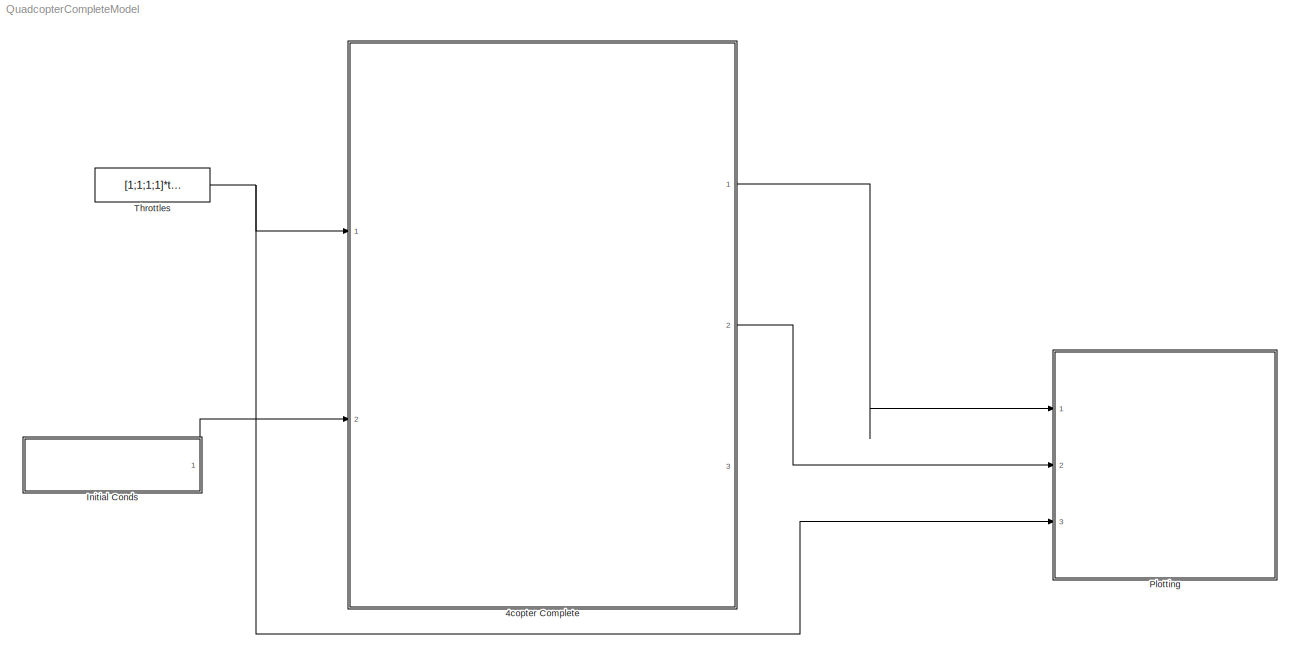
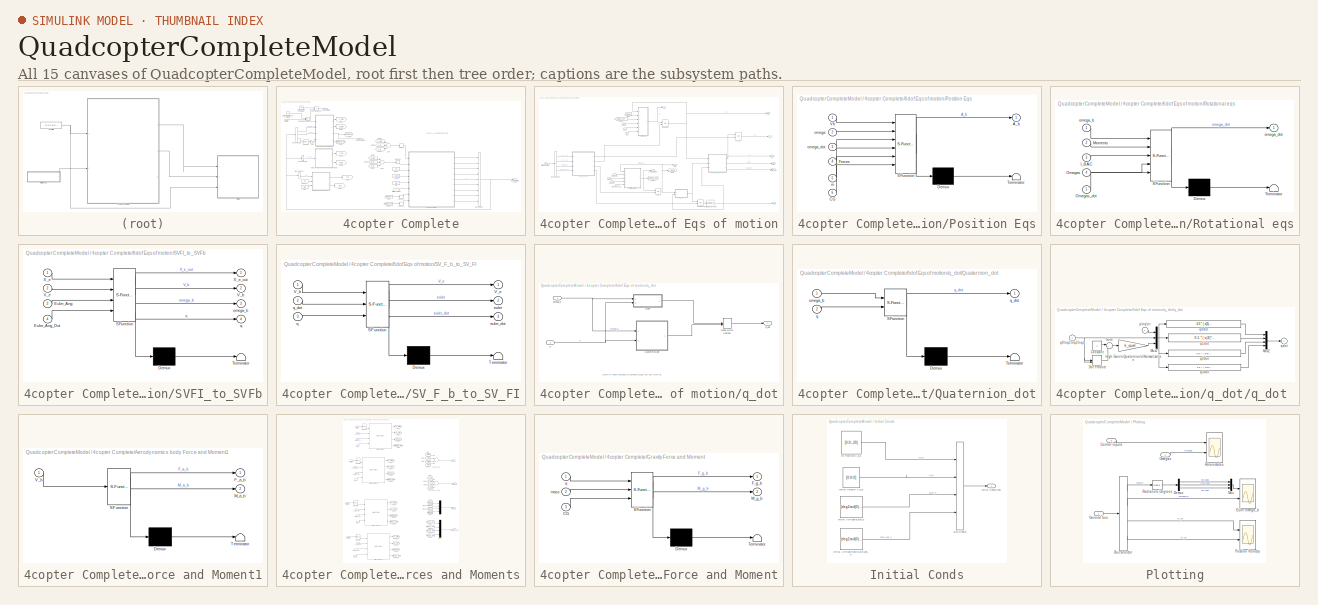
[diagram: thumbnail index - all 15 canvases of the model, root first then tree order]
MODEL QuadcopterCompleteModel
KIND model
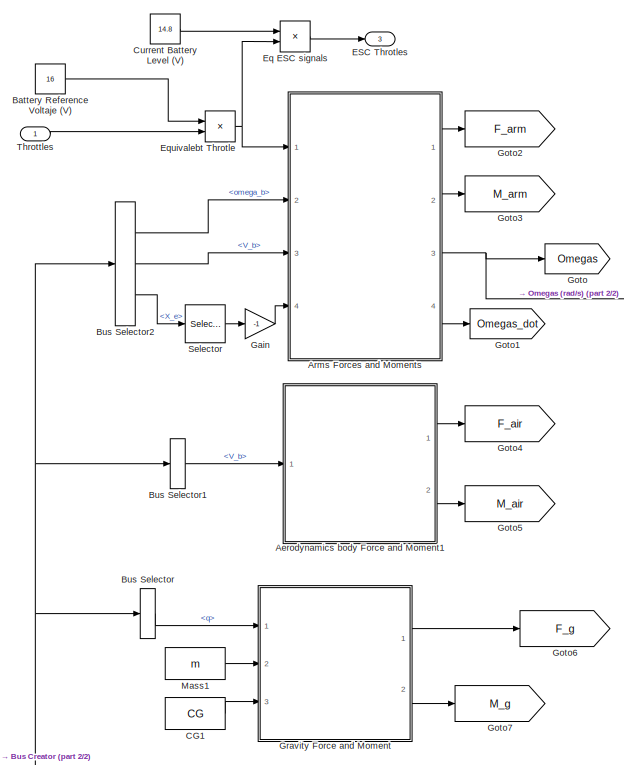
[diagram: 4copter Complete - part 1/2, left side, full height]
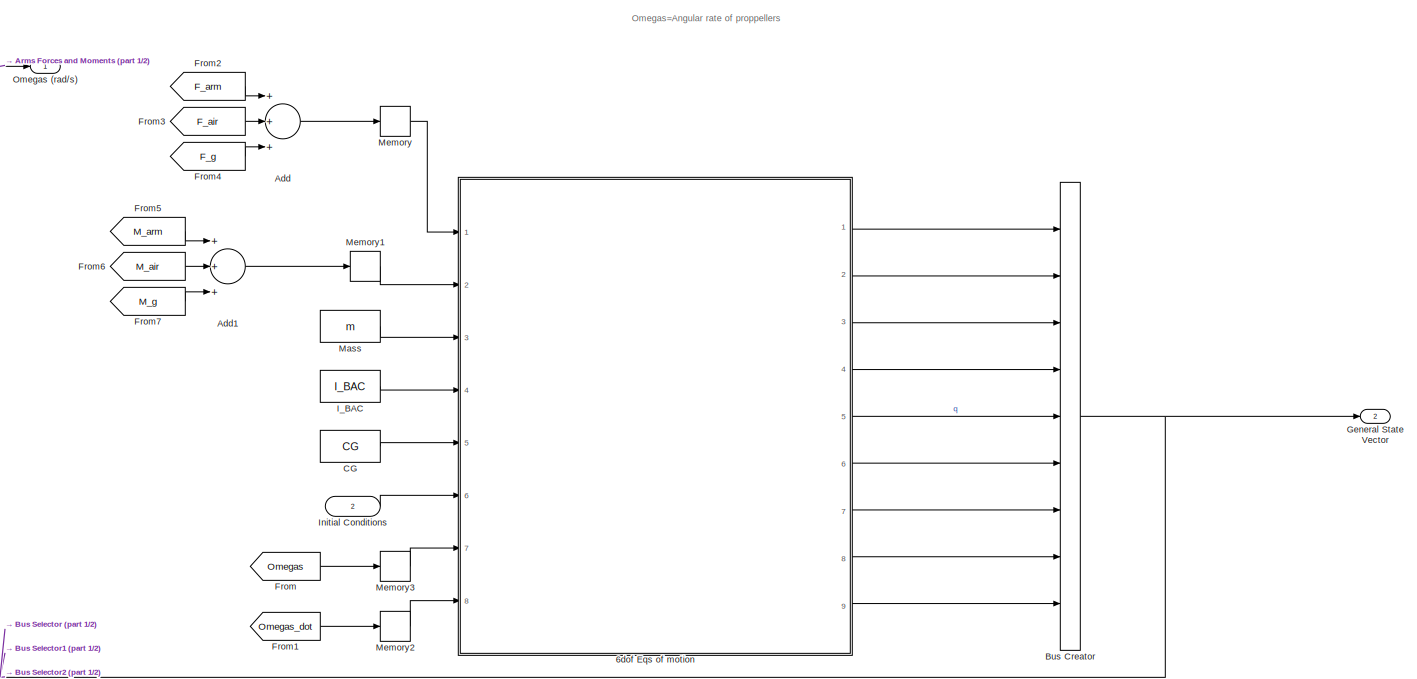
[diagram: 4copter Complete - part 2/2, central region]
BLOCK [SubSystem] 4copter Complete
  Ports = [2, 3]
  RequestExecContextInheritance = off
  SID = 284
  TreatAsAtomicUnit = on
BLOCK [SubSystem] 4copter Complete/6dof Eqs of motion
  Ports = [8, 9]
  RequestExecContextInheritance = off
  SID = 339
  TreatAsAtomicUnit = on
BLOCK [Outport] 4copter Complete/6dof Eqs of motion/Ab
  IconDisplay = Port number
  Port = 7
  SID = 369
BLOCK [BusSelector] 4copter Complete/6dof Eqs of motion/Bus Selector
  OutputSignals = X_e_0,V_e_0,Euler_0,Euler_dot_0
  Ports = [1, 4]
  SID = 372
BLOCK [Inport] 4copter Complete/6dof Eqs of motion/CG
  IconDisplay = Port number
  Port = 5
  SID = 371
BLOCK [Inport] 4copter Complete/6dof Eqs of motion/Forces
  IconDisplay = Port number
  SID = 342
BLOCK [From] 4copter Complete/6dof Eqs of motion/From
  GotoTag = omega
  SID = 349
BLOCK [From] 4copter Complete/6dof Eqs of motion/From1
  GotoTag = omega_dot
  SID = 350
BLOCK [Goto] 4copter Complete/6dof Eqs of motion/Goto
  GotoTag = omega
  SID = 351
BLOCK [Goto] 4copter Complete/6dof Eqs of motion/Goto1
  GotoTag = omega_dot
  SID = 352
BLOCK [Inport] 4copter Complete/6dof Eqs of motion/I_BAC
  IconDisplay = Port number
  Port = 4
  SID = 347
BLOCK [Inport] 4copter Complete/6dof Eqs of motion/Initial Conditions
  IconDisplay = Port number
  Port = 6
  SID = 373
BLOCK [Inport] 4copter Complete/6dof Eqs of motion/Moments
  IconDisplay = Port number
  Port = 2
  SID = 343
BLOCK [Reference] 4copter Complete/6dof Eqs of motion/Normalize 4D vector  REF=MCopter/Normalize 4D vector
  Ports = [1, 1]
  SID = 1178
  SourceBlock = MCopter/Normalize 4D vector
  SourceType = SubSystem
BLOCK [Inport] 4copter Complete/6dof Eqs of motion/Omegas
  IconDisplay = Port number
  Port = 7
  SID = 391
BLOCK [Inport] 4copter Complete/6dof Eqs of motion/Omegas_dot
  IconDisplay = Port number
  Port = 8
  SID = 392
BLOCK [SubSystem] 4copter Complete/6dof Eqs of motion/Position Eqs
  ErrorFcn = Stateflow.Translate.translate
  PermitHierarchicalResolution = ExplicitOnly
  Ports = [6, 1]
  RequestExecContextInheritance = off
  SFBlockType = MATLAB Function
  SID = 353
  TreatAsAtomicUnit = on
BLOCK [Demux] 4copter Complete/6dof Eqs of motion/Position Eqs/ Demux 
  Outputs = 1
  Ports = [1, 1]
  SID = 353::32
BLOCK [S-Function] 4copter Complete/6dof Eqs of motion/Position Eqs/ SFunction 
  EnableBusSupport = on
  FunctionName = sf_sfun
  PortCounts = [6 2]
  Ports = [6, 2]
  SID = 353::31
  Tag = Stateflow S-Function QuadcopterCompleteModel 1
BLOCK [Terminator] 4copter Complete/6dof Eqs of motion/Position Eqs/ Terminator 
  SID = 353::33
BLOCK [Outport] 4copter Complete/6dof Eqs of motion/Position Eqs/A_b
  IconDisplay = Port number
  SID = 353::23
BLOCK [Inport] 4copter Complete/6dof Eqs of motion/Position Eqs/CG
  IconDisplay = Port number
  Port = 6
  SID = 353::30
BLOCK [Inport] 4copter Complete/6dof Eqs of motion/Position Eqs/Forces
  IconDisplay = Port number
  Port = 4
  SID = 353::25
BLOCK [Inport] 4copter Complete/6dof Eqs of motion/Position Eqs/Vb
  IconDisplay = Port number
  SID = 353::1
BLOCK [Inport] 4copter Complete/6dof Eqs of motion/Position Eqs/m
  IconDisplay = Port number
  Port = 5
  SID = 353::26
BLOCK [Inport] 4copter Complete/6dof Eqs of motion/Position Eqs/omega
  IconDisplay = Port number
  Port = 2
  SID = 353::28
BLOCK [Inport] 4copter Complete/6dof Eqs of motion/Position Eqs/omega_dot
  IconDisplay = Port number
  Port = 3
  SID = 353::29
BLOCK [SubSystem] 4copter Complete/6dof Eqs of motion/Rotational eqs
  ErrorFcn = Stateflow.Translate.translate
  PermitHierarchicalResolution = ExplicitOnly
  Ports = [5, 1]
  RequestExecContextInheritance = off
  SFBlockType = MATLAB Function
  SID = 354
  TreatAsAtomicUnit = on
BLOCK [Demux] 4copter Complete/6dof Eqs of motion/Rotational eqs/ Demux 
  Outputs = 1
  Ports = [1, 1]
  SID = 354::41
BLOCK [S-Function] 4copter Complete/6dof Eqs of motion/Rotational eqs/ SFunction 
  EnableBusSupport = on
  FunctionName = sf_sfun
  Parameters = M_eq,R,Rotation_sign
  PortCounts = [5 2]
  Ports = [5, 2]
  SID = 354::40
  Tag = Stateflow S-Function QuadcopterCompleteModel 2
BLOCK [Terminator] 4copter Complete/6dof Eqs of motion/Rotational eqs/ Terminator 
  SID = 354::42
BLOCK [Inport] 4copter Complete/6dof Eqs of motion/Rotational eqs/I_BAC
  IconDisplay = Port number
  Port = 3
  SID = 354::33
BLOCK [Inport] 4copter Complete/6dof Eqs of motion/Rotational eqs/Moments
  IconDisplay = Port number
  Port = 2
  SID = 354::35
BLOCK [Inport] 4copter Complete/6dof Eqs of motion/Rotational eqs/Omegas
  IconDisplay = Port number
  Port = 4
  SID = 354::38
BLOCK [Inport] 4copter Complete/6dof Eqs of motion/Rotational eqs/Omegas_dot
  IconDisplay = Port number
  Port = 5
  SID = 354::39
BLOCK [Inport] 4copter Complete/6dof Eqs of motion/Rotational eqs/omega_b
  IconDisplay = Port number
  SID = 354::37
BLOCK [Outport] 4copter Complete/6dof Eqs of motion/Rotational eqs/omega_dot
  IconDisplay = Port number
  SID = 354::31
BLOCK [SubSystem] 4copter Complete/6dof Eqs of motion/SVFI_to_SVFb
  ErrorFcn = Stateflow.Translate.translate
  PermitHierarchicalResolution = ExplicitOnly
  Ports = [4, 4]
  RequestExecContextInheritance = off
  SFBlockType = MATLAB Function
  SID = 303
  TreatAsAtomicUnit = on
BLOCK [Demux] 4copter Complete/6dof Eqs of motion/SVFI_to_SVFb/ Demux 
  Outputs = 1
  Ports = [1, 1]
  SID = 303::36
BLOCK [S-Function] 4copter Complete/6dof Eqs of motion/SVFI_to_SVFb/ SFunction 
  EnableBusSupport = on
  FunctionName = sf_sfun
  PortCounts = [4 5]
  Ports = [4, 5]
  SID = 303::35
  Tag = Stateflow S-Function QuadcopterCompleteModel 11
BLOCK [Terminator] 4copter Complete/6dof Eqs of motion/SVFI_to_SVFb/ Terminator 
  SID = 303::37
BLOCK [Inport] 4copter Complete/6dof Eqs of motion/SVFI_to_SVFb/Euler_Ang
  IconDisplay = Port number
  Port = 3
  SID = 303::29
BLOCK [Inport] 4copter Complete/6dof Eqs of motion/SVFI_to_SVFb/Euler_Ang_Dot
  IconDisplay = Port number
  Port = 4
  SID = 303::30
BLOCK [Outport] 4copter Complete/6dof Eqs of motion/SVFI_to_SVFb/V_b
  IconDisplay = Port number
  Port = 2
  SID = 303::33
BLOCK [Inport] 4copter Complete/6dof Eqs of motion/SVFI_to_SVFb/V_e
  IconDisplay = Port number
  Port = 2
  SID = 303::32
BLOCK [Inport] 4copter Complete/6dof Eqs of motion/SVFI_to_SVFb/X_e
  IconDisplay = Port number
  SID = 303::1
BLOCK [Outport] 4copter Complete/6dof Eqs of motion/SVFI_to_SVFb/X_e_out
  IconDisplay = Port number
  SID = 303::28
BLOCK [Outport] 4copter Complete/6dof Eqs of motion/SVFI_to_SVFb/omega_b
  IconDisplay = Port number
  Port = 3
  SID = 303::34
BLOCK [Outport] 4copter Complete/6dof Eqs of motion/SVFI_to_SVFb/q
  IconDisplay = Port number
  Port = 4
  SID = 303::31
BLOCK [SubSystem] 4copter Complete/6dof Eqs of motion/SV_F_b_to_SV_FI
  ErrorFcn = Stateflow.Translate.translate
  PermitHierarchicalResolution = ExplicitOnly
  Ports = [3, 3]
  RequestExecContextInheritance = off
  SFBlockType = MATLAB Function
  SID = 304
  TreatAsAtomicUnit = on
BLOCK [Demux] 4copter Complete/6dof Eqs of motion/SV_F_b_to_SV_FI/ Demux 
  Outputs = 1
  Ports = [1, 1]
  SID = 304::39
BLOCK [S-Function] 4copter Complete/6dof Eqs of motion/SV_F_b_to_SV_FI/ SFunction 
  EnableBusSupport = on
  FunctionName = sf_sfun
  PortCounts = [3 4]
  Ports = [3, 4]
  SID = 304::38
  Tag = Stateflow S-Function QuadcopterCompleteModel 12
BLOCK [Terminator] 4copter Complete/6dof Eqs of motion/SV_F_b_to_SV_FI/ Terminator 
  SID = 304::40
BLOCK [Inport] 4copter Complete/6dof Eqs of motion/SV_F_b_to_SV_FI/V_b
  IconDisplay = Port number
  SID = 304::31
BLOCK [Outport] 4copter Complete/6dof Eqs of motion/SV_F_b_to_SV_FI/V_e
  IconDisplay = Port number
  SID = 304::34
BLOCK [Outport] 4copter Complete/6dof Eqs of motion/SV_F_b_to_SV_FI/euler
  IconDisplay = Port number
  Port = 2
  SID = 304::35
BLOCK [Outport] 4copter Complete/6dof Eqs of motion/SV_F_b_to_SV_FI/euler_dot
  IconDisplay = Port number
  Port = 3
  SID = 304::36
BLOCK [Inport] 4copter Complete/6dof Eqs of motion/SV_F_b_to_SV_FI/q
  IconDisplay = Port number
  Port = 3
  SID = 304::33
BLOCK [Inport] 4copter Complete/6dof Eqs of motion/SV_F_b_to_SV_FI/q_dot
  IconDisplay = Port number
  Port = 2
  SID = 304::37
BLOCK [Outport] 4copter Complete/6dof Eqs of motion/Vb
  IconDisplay = Port number
  Port = 3
  SID = 366
BLOCK [Outport] 4copter Complete/6dof Eqs of motion/Ve
  IconDisplay = Port number
  Port = 2
  SID = 362
BLOCK [Outport] 4copter Complete/6dof Eqs of motion/Xe
  IconDisplay = Port number
  SID = 363
BLOCK [Outport] 4copter Complete/6dof Eqs of motion/euler
  IconDisplay = Port number
  Port = 8
  SID = 364
BLOCK [Outport] 4copter Complete/6dof Eqs of motion/euler_dot
  IconDisplay = Port number
  Port = 9
  SID = 389
BLOCK [Inport] 4copter Complete/6dof Eqs of motion/mass
  IconDisplay = Port number
  Port = 3
  SID = 345
BLOCK [Outport] 4copter Complete/6dof Eqs of motion/p,q,r
  IconDisplay = Port number
  Port = 4
  SID = 367
BLOCK [Integrator] 4copter Complete/6dof Eqs of motion/p,q,r 
  InitialCondition = [P_0,Q_0,R_0]
  InitialConditionSource = external
  Ports = [2, 1]
  SID = 358
BLOCK [Outport] 4copter Complete/6dof Eqs of motion/pdot,qdot,rdot
  IconDisplay = Port number
  Port = 6
  SID = 368
BLOCK [Outport] 4copter Complete/6dof Eqs of motion/q
  IconDisplay = Port number
  Port = 5
  SID = 365
BLOCK [SubSystem] 4copter Complete/6dof Eqs of motion/q_dot
  Ports = [2, 1]
  RequestExecContextInheritance = off
  SID = 1017
  TreatAsAtomicUnit = on
BLOCK [SubSystem] 4copter Complete/6dof Eqs of motion/q_dot/Quaternion_dot
  ErrorFcn = Stateflow.Translate.translate
  PermitHierarchicalResolution = ExplicitOnly
  Ports = [2, 1]
  RequestExecContextInheritance = off
  SFBlockType = MATLAB Function
  SID = 1004
  TreatAsAtomicUnit = on
  VariantControl = Variant
BLOCK [Demux] 4copter Complete/6dof Eqs of motion/q_dot/Quaternion_dot/ Demux 
  Outputs = 1
  Ports = [1, 1]
  SID = 1004::25
BLOCK [S-Function] 4copter Complete/6dof Eqs of motion/q_dot/Quaternion_dot/ SFunction 
  EnableBusSupport = on
  FunctionName = sf_sfun
  PortCounts = [2 2]
  Ports = [2, 2]
  SID = 1004::24
  Tag = Stateflow S-Function QuadcopterCompleteModel 3
BLOCK [Terminator] 4copter Complete/6dof Eqs of motion/q_dot/Quaternion_dot/ Terminator 
  SID = 1004::26
BLOCK [Inport] 4copter Complete/6dof Eqs of motion/q_dot/Quaternion_dot/omega_b
  IconDisplay = Port number
  SID = 1004::1
BLOCK [Inport] 4copter Complete/6dof Eqs of motion/q_dot/Quaternion_dot/q
  IconDisplay = Port number
  Port = 2
  SID = 1004::23
BLOCK [Outport] 4copter Complete/6dof Eqs of motion/q_dot/Quaternion_dot/q_dot
  IconDisplay = Port number
  SID = 1004::5
BLOCK [ManualSwitch] 4copter Complete/6dof Eqs of motion/q_dot/chose which method
  CurrentSetting = 0
  SID = 1025
BLOCK [Inport] 4copter Complete/6dof Eqs of motion/q_dot/omega_b
  IconDisplay = Port number
  SID = 1018
BLOCK [Inport] 4copter Complete/6dof Eqs of motion/q_dot/q
  IconDisplay = Port number
  Port = 2
  SID = 1020
BLOCK [Outport] 4copter Complete/6dof Eqs of motion/q_dot/q_dot
  IconDisplay = Port number
  SID = 1019
BLOCK [SubSystem] 4copter Complete/6dof Eqs of motion/q_dot/q_dot 
  Ports = [2, 1]
  RequestExecContextInheritance = off
  SID = 1179
  TreatAsAtomicUnit = on
BLOCK [Constant] 4copter Complete/6dof Eqs of motion/q_dot/q_dot /Constant
  SID = 1184
BLOCK [DotProduct] 4copter Complete/6dof Eqs of motion/q_dot/q_dot /Dot Product
  InputSameDT = off
  OutDataTypeStr = Inherit: Inherit via internal rule
  SID = 1185
BLOCK [Gain] 4copter Complete/6dof Eqs of motion/q_dot/q_dot /High Gain\nQuaternion\nNormalization
  Gain = k_quat
  SID = 1186
BLOCK [Mux] 4copter Complete/6dof Eqs of motion/q_dot/q_dot /Mux1
  DisplayOption = bar
  Inputs = [3 4 1]
  Ports = [3, 1]
  SID = 1187
BLOCK [Mux] 4copter Complete/6dof Eqs of motion/q_dot/q_dot /Mux2
  DisplayOption = bar
  Ports = [4, 1]
  SID = 1188
BLOCK [Sum] 4copter Complete/6dof Eqs of motion/q_dot/q_dot /Sum
  IconShape = round
  Inputs = |+-
  Ports = [2, 1]
  SID = 1189
BLOCK [Inport] 4copter Complete/6dof Eqs of motion/q_dot/q_dot /p\nq\nr
  IconDisplay = Port number
  SID = 1182
BLOCK [Inport] 4copter Complete/6dof Eqs of motion/q_dot/q_dot /q0\nq1\nq2\nq3
  IconDisplay = Port number
  Port = 2
  SID = 1183
BLOCK [Fcn] 4copter Complete/6dof Eqs of motion/q_dot/q_dot /q0dot
  Expr = -0.5 * ( u[5]*u[1]+u[6]*u[2]+u[7]*u[3] ) + u[8]*u[4]
  SID = 1190
BLOCK [Fcn] 4copter Complete/6dof Eqs of motion/q_dot/q_dot /q1dot
  Expr = 0.5 * ( u[4]*u[1]+u[6]*u[3]-u[7]*u[2] ) + u[8]*u[5]
  SID = 1191
BLOCK [Fcn] 4copter Complete/6dof Eqs of motion/q_dot/q_dot /q2dot
  Expr = 0.5 * ( u[4]*u[2]+u[7]*u[1]-u[5]*u[3] ) + u[8]*u[6]
  SID = 1192
BLOCK [Fcn] 4copter Complete/6dof Eqs of motion/q_dot/q_dot /q3dot
  Expr = 0.5 * ( u[4]*u[3]+u[5]*u[2]-u[6]*u[1] ) + u[8]*u[7]
  SID = 1193
BLOCK [Outport] 4copter Complete/6dof Eqs of motion/q_dot/q_dot /qdot
  IconDisplay = Port number
  InitialOutput = 0
  SID = 1194
BLOCK [Integrator] 4copter Complete/6dof Eqs of motion/quaternion
  InitialCondition = [P_0,Q_0,R_0]
  InitialConditionSource = external
  Ports = [2, 1]
  SID = 386
BLOCK [Integrator] 4copter Complete/6dof Eqs of motion/ub,vb,wb
  InitialCondition = [U_0,V_0,W_0]
  InitialConditionSource = external
  Ports = [2, 1]
  SID = 360
BLOCK [Integrator] 4copter Complete/6dof Eqs of motion/xe,ye,ze
  InitialCondition = [NORTH_0,EAST_0,-DOWN_0]
  InitialConditionSource = external
  Ports = [2, 1]
  SID = 361
BLOCK [Sum] 4copter Complete/Add
  InputSameDT = off
  Inputs = +++
  OutDataTypeStr = Inherit: Inherit via internal rule
  Ports = [3, 1]
  SID = 649
  SaturateOnIntegerOverflow = off
BLOCK [Sum] 4copter Complete/Add1
  InputSameDT = off
  Inputs = +++
  OutDataTypeStr = Inherit: Inherit via internal rule
  Ports = [3, 1]
  SID = 663
  SaturateOnIntegerOverflow = off
BLOCK [SubSystem] 4copter Complete/Aerodynamics body Force and Moment1
  ErrorFcn = Stateflow.Translate.translate
  PermitHierarchicalResolution = ExplicitOnly
  Ports = [1, 2]
  RequestExecContextInheritance = off
  SFBlockType = MATLAB Function
  SID = 1196
  TreatAsAtomicUnit = on
BLOCK [Demux] 4copter Complete/Aerodynamics body Force and Moment1/ Demux 
  Outputs = 1
  Ports = [1, 1]
  SID = 1196::47
BLOCK [S-Function] 4copter Complete/Aerodynamics body Force and Moment1/ SFunction 
  EnableBusSupport = on
  FunctionName = sf_sfun
  Parameters = A_x,A_y,A_z,C_x,C_y,C_z,rho
  PortCounts = [1 3]
  Ports = [1, 3]
  SID = 1196::46
  Tag = Stateflow S-Function QuadcopterCompleteModel 5
BLOCK [Terminator] 4copter Complete/Aerodynamics body Force and Moment1/ Terminator 
  SID = 1196::48
BLOCK [Outport] 4copter Complete/Aerodynamics body Force and Moment1/F_a_b
  IconDisplay = Port number
  SID = 1196::34
BLOCK [Outport] 4copter Complete/Aerodynamics body Force and Moment1/M_a_b
  IconDisplay = Port number
  Port = 2
  SID = 1196::35
BLOCK [Inport] 4copter Complete/Aerodynamics body Force and Moment1/V_b
  IconDisplay = Port number
  SID = 1196::33
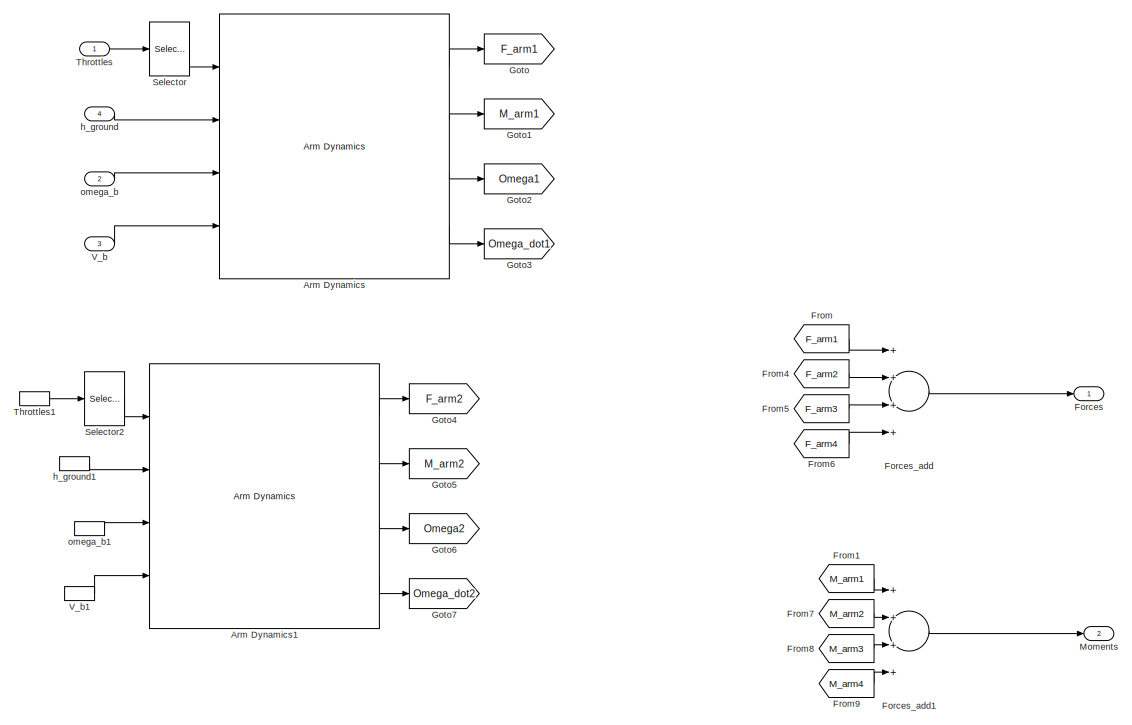
[diagram: 4copter Complete/Arms Forces and Moments - part 1/2, full width, top band]
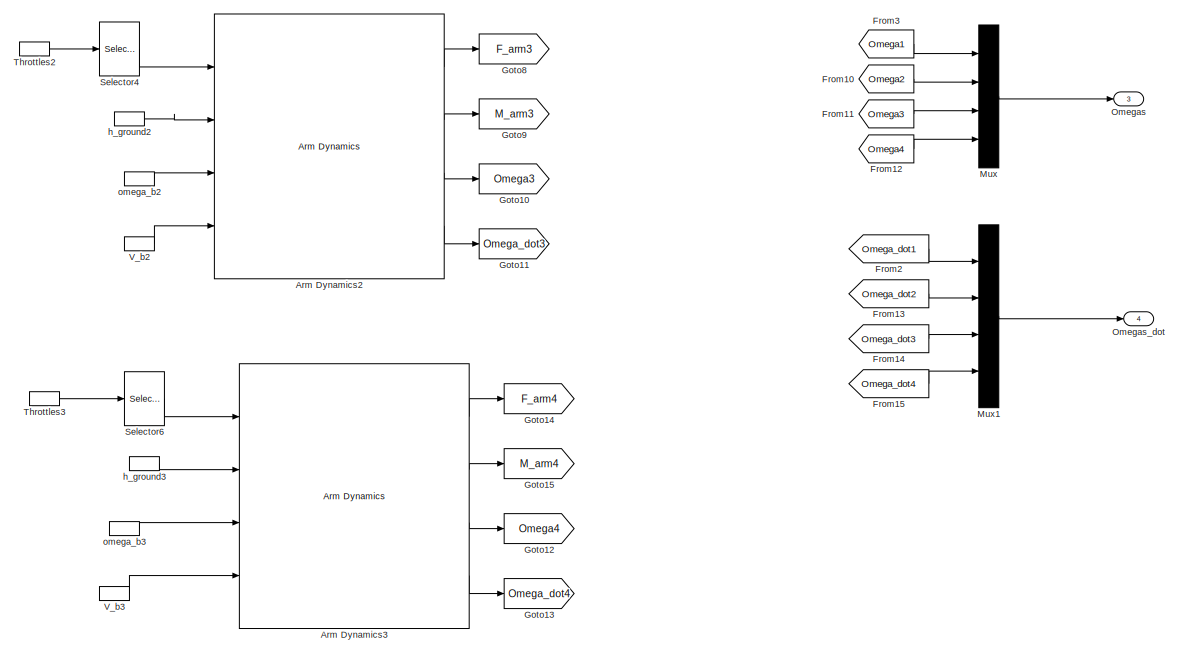
[diagram: 4copter Complete/Arms Forces and Moments - part 2/2, full width, bottom band]
BLOCK [SubSystem] 4copter Complete/Arms Forces and Moments
  Ports = [4, 4]
  RequestExecContextInheritance = off
  SID = 498
  TreatAsAtomicUnit = on
BLOCK [Reference] 4copter Complete/Arms Forces and Moments/Arm Dynamics  REF=MCopter/Arm Dynamics
  J_T = J_T
  Omega_ini = Initial_Omegas(1)
  Ports = [4, 4]
  Rot_sign = Rotation_sign(1)
  SID = 1150
  SourceBlock = MCopter/Arm Dynamics
  SourceType = Arm dynamics, forces and moments
  Torq_ini = Initial_Torques(1)
  arm_hub_pos = l*[1;0;0]
  arm_num = 1
  h = h
  tau = Tau_motors
BLOCK [Reference] 4copter Complete/Arms Forces and Moments/Arm Dynamics1  REF=MCopter/Arm Dynamics
  J_T = J_T
  Omega_ini = Initial_Omegas(2)
  Ports = [4, 4]
  Rot_sign = Rotation_sign(2)
  SID = 1159
  SourceBlock = MCopter/Arm Dynamics
  SourceType = Arm dynamics, forces and moments
  Torq_ini = Initial_Torques(2)
  arm_hub_pos = l*[0;1;0]
  arm_num = 2
  h = h
  tau = Tau_motors
BLOCK [Reference] 4copter Complete/Arms Forces and Moments/Arm Dynamics2  REF=MCopter/Arm Dynamics
  J_T = J_T
  Omega_ini = Initial_Omegas(3)
  Ports = [4, 4]
  Rot_sign = Rotation_sign(3)
  SID = 1160
  SourceBlock = MCopter/Arm Dynamics
  SourceType = Arm dynamics, forces and moments
  Torq_ini = Initial_Torques(3)
  arm_hub_pos = l*[-1;0;0]
  arm_num = 3
  h = h
  tau = Tau_motors
BLOCK [Reference] 4copter Complete/Arms Forces and Moments/Arm Dynamics3  REF=MCopter/Arm Dynamics
  J_T = J_T
  Omega_ini = Initial_Omegas(4)
  Ports = [4, 4]
  Rot_sign = Rotation_sign(4)
  SID = 1161
  SourceBlock = MCopter/Arm Dynamics
  SourceType = Arm dynamics, forces and moments
  Torq_ini = Initial_Torques(4)
  arm_hub_pos = l*[0;-1;0]
  arm_num = 4
  h = h
  tau = Tau_motors
BLOCK [Outport] 4copter Complete/Arms Forces and Moments/Forces
  IconDisplay = Port number
  SID = 537
BLOCK [Sum] 4copter Complete/Arms Forces and Moments/Forces_add
  InputSameDT = off
  Inputs = ++++
  OutDataTypeStr = Inherit: Inherit via internal rule
  Ports = [4, 1]
  SID = 548
  SaturateOnIntegerOverflow = off
BLOCK [Sum] 4copter Complete/Arms Forces and Moments/Forces_add1
  InputSameDT = off
  Inputs = ++++
  OutDataTypeStr = Inherit: Inherit via internal rule
  Ports = [4, 1]
  SID = 670
  SaturateOnIntegerOverflow = off
BLOCK [From] 4copter Complete/Arms Forces and Moments/From
  GotoTag = F_arm1
  SID = 668
BLOCK [From] 4copter Complete/Arms Forces and Moments/From1
  GotoTag = M_arm1
  SID = 669
BLOCK [From] 4copter Complete/Arms Forces and Moments/From10
  GotoTag = Omega2
  SID = 988
BLOCK [From] 4copter Complete/Arms Forces and Moments/From11
  GotoTag = Omega3
  SID = 989
BLOCK [From] 4copter Complete/Arms Forces and Moments/From12
  GotoTag = Omega4
  SID = 990
BLOCK [From] 4copter Complete/Arms Forces and Moments/From13
  GotoTag = Omega_dot2
  SID = 991
BLOCK [From] 4copter Complete/Arms Forces and Moments/From14
  GotoTag = Omega_dot3
  SID = 992
BLOCK [From] 4copter Complete/Arms Forces and Moments/From15
  GotoTag = Omega_dot4
  SID = 993
BLOCK [From] 4copter Complete/Arms Forces and Moments/From2
  GotoTag = Omega_dot1
  SID = 671
BLOCK [From] 4copter Complete/Arms Forces and Moments/From3
  GotoTag = Omega1
  SID = 672
BLOCK [From] 4copter Complete/Arms Forces and Moments/From4
  GotoTag = F_arm2
  SID = 982
BLOCK [From] 4copter Complete/Arms Forces and Moments/From5
  GotoTag = F_arm3
  SID = 983
BLOCK [From] 4copter Complete/Arms Forces and Moments/From6
  GotoTag = F_arm4
  SID = 984
BLOCK [From] 4copter Complete/Arms Forces and Moments/From7
  GotoTag = M_arm2
  SID = 985
BLOCK [From] 4copter Complete/Arms Forces and Moments/From8
  GotoTag = M_arm3
  SID = 986
BLOCK [From] 4copter Complete/Arms Forces and Moments/From9
  GotoTag = M_arm4
  SID = 987
BLOCK [Goto] 4copter Complete/Arms Forces and Moments/Goto
  GotoTag = F_arm1
  SID = 664
BLOCK [Goto] 4copter Complete/Arms Forces and Moments/Goto1
  GotoTag = M_arm1
  SID = 665
BLOCK [Goto] 4copter Complete/Arms Forces and Moments/Goto10
  GotoTag = Omega3
  SID = 871
BLOCK [Goto] 4copter Complete/Arms Forces and Moments/Goto11
  GotoTag = Omega_dot3
  SID = 872
BLOCK [Goto] 4copter Complete/Arms Forces and Moments/Goto12
  GotoTag = Omega4
  SID = 971
BLOCK [Goto] 4copter Complete/Arms Forces and Moments/Goto13
  GotoTag = Omega_dot4
  SID = 972
BLOCK [Goto] 4copter Complete/Arms Forces and Moments/Goto14
  GotoTag = F_arm4
  SID = 973
BLOCK [Goto] 4copter Complete/Arms Forces and Moments/Goto15
  GotoTag = M_arm4
  SID = 974
BLOCK [Goto] 4copter Complete/Arms Forces and Moments/Goto2
  GotoTag = Omega1
  SID = 666
BLOCK [Goto] 4copter Complete/Arms Forces and Moments/Goto3
  GotoTag = Omega_dot1
  SID = 667
BLOCK [Goto] 4copter Complete/Arms Forces and Moments/Goto4
  GotoTag = F_arm2
  SID = 771
BLOCK [Goto] 4copter Complete/Arms Forces and Moments/Goto5
  GotoTag = M_arm2
  SID = 772
BLOCK [Goto] 4copter Complete/Arms Forces and Moments/Goto6
  GotoTag = Omega2
  SID = 773
BLOCK [Goto] 4copter Complete/Arms Forces and Moments/Goto7
  GotoTag = Omega_dot2
  SID = 774
BLOCK [Goto] 4copter Complete/Arms Forces and Moments/Goto8
  GotoTag = F_arm3
  SID = 869
BLOCK [Goto] 4copter Complete/Arms Forces and Moments/Goto9
  GotoTag = M_arm3
  SID = 870
BLOCK [Outport] 4copter Complete/Arms Forces and Moments/Moments
  IconDisplay = Port number
  Port = 2
  SID = 538
BLOCK [Mux] 4copter Complete/Arms Forces and Moments/Mux
  DisplayOption = bar
  Ports = [4, 1]
  SID = 528
BLOCK [Mux] 4copter Complete/Arms Forces and Moments/Mux1
  DisplayOption = bar
  Ports = [4, 1]
  SID = 529
BLOCK [Outport] 4copter Complete/Arms Forces and Moments/Omegas
  IconDisplay = Port number
  Port = 3
  SID = 539
BLOCK [Outport] 4copter Complete/Arms Forces and Moments/Omegas_dot
  IconDisplay = Port number
  Port = 4
  SID = 540
BLOCK [Selector] 4copter Complete/Arms Forces and Moments/Selector
  Indices = [1]
  InputPortWidth = 4
  Ports = [1, 1]
  SID = 530
BLOCK [Selector] 4copter Complete/Arms Forces and Moments/Selector2
  Indices = 2
  InputPortWidth = 4
  Ports = [1, 1]
  SID = 775
BLOCK [Selector] 4copter Complete/Arms Forces and Moments/Selector4
  Indices = 3
  InputPortWidth = 4
  Ports = [1, 1]
  SID = 874
BLOCK [Selector] 4copter Complete/Arms Forces and Moments/Selector6
  Indices = 4
  InputPortWidth = 4
  Ports = [1, 1]
  SID = 976
BLOCK [Inport] 4copter Complete/Arms Forces and Moments/Throttles
  IconDisplay = Port number
  SID = 499
BLOCK [InportShadow] 4copter Complete/Arms Forces and Moments/Throttles1
  IconDisplay = Port number
  SID = 534
BLOCK [InportShadow] 4copter Complete/Arms Forces and Moments/Throttles2
  IconDisplay = Port number
  SID = 876
BLOCK [InportShadow] 4copter Complete/Arms Forces and Moments/Throttles3
  IconDisplay = Port number
  SID = 978
BLOCK [Inport] 4copter Complete/Arms Forces and Moments/V_b
  IconDisplay = Port number
  Port = 3
  SID = 502
BLOCK [InportShadow] 4copter Complete/Arms Forces and Moments/V_b1
  IconDisplay = Port number
  Port = 3
  SID = 535
BLOCK [InportShadow] 4copter Complete/Arms Forces and Moments/V_b2
  IconDisplay = Port number
  Port = 3
  SID = 877
BLOCK [InportShadow] 4copter Complete/Arms Forces and Moments/V_b3
  IconDisplay = Port number
  Port = 3
  SID = 979
BLOCK [Inport] 4copter Complete/Arms Forces and Moments/h_ground
  IconDisplay = Port number
  Port = 4
  SID = 598
BLOCK [InportShadow] 4copter Complete/Arms Forces and Moments/h_ground1
  IconDisplay = Port number
  Port = 4
  SID = 777
BLOCK [InportShadow] 4copter Complete/Arms Forces and Moments/h_ground2
  IconDisplay = Port number
  Port = 4
  SID = 878
BLOCK [InportShadow] 4copter Complete/Arms Forces and Moments/h_ground3
  IconDisplay = Port number
  Port = 4
  SID = 980
BLOCK [Inport] 4copter Complete/Arms Forces and Moments/omega_b
  IconDisplay = Port number
  Port = 2
  SID = 501
BLOCK [InportShadow] 4copter Complete/Arms Forces and Moments/omega_b1
  IconDisplay = Port number
  Port = 2
  SID = 536
BLOCK [InportShadow] 4copter Complete/Arms Forces and Moments/omega_b2
  IconDisplay = Port number
  Port = 2
  SID = 879
BLOCK [InportShadow] 4copter Complete/Arms Forces and Moments/omega_b3
  IconDisplay = Port number
  Port = 2
  SID = 981
BLOCK [Constant] 4copter Complete/Battery Reference Voltaje (V)
  SID = 1244
  Value = 16
BLOCK [BusCreator] 4copter Complete/Bus Creator
  DisplayOption = bar
  Inputs = 9
  Ports = [9, 1]
  SID = 418
BLOCK [BusSelector] 4copter Complete/Bus Selector
  OutputSignals = q
  Ports = [1, 1]
  SID = 419
BLOCK [BusSelector] 4copter Complete/Bus Selector1
  OutputSignals = V_b
  Ports = [1, 1]
  SID = 427
BLOCK [BusSelector] 4copter Complete/Bus Selector2
  OutputSignals = omega_b,V_b,X_e
  Ports = [1, 3]
  SID = 541
BLOCK [Constant] 4copter Complete/CG
  SID = 421
  Value = CG
BLOCK [Constant] 4copter Complete/CG1
  SID = 543
  Value = CG
BLOCK [Constant] 4copter Complete/Current Battery Level (V)
  SID = 1247
  Value = 14.8
BLOCK [Outport] 4copter Complete/ESC Throtles
  IconDisplay = Port number
  Port = 3
  SID = 1246
BLOCK [Product] 4copter Complete/Eq ESC signals
  InputSameDT = off
  Inputs = **
  OutDataTypeStr = Inherit: Inherit via internal rule
  Ports = [2, 1]
  RndMeth = Floor
  SID = 1248
  SaturateOnIntegerOverflow = off
BLOCK [Product] 4copter Complete/Equivalebt Throtle
  InputSameDT = off
  Inputs = **
  OutDataTypeStr = Inherit: Inherit via internal rule
  Ports = [2, 1]
  RndMeth = Floor
  SID = 1245
  SaturateOnIntegerOverflow = off
BLOCK [From] 4copter Complete/From
  GotoTag = Omegas
  SID = 546
BLOCK [From] 4copter Complete/From1
  GotoTag = Omegas_dot
  SID = 547
BLOCK [From] 4copter Complete/From2
  GotoTag = F_arm
  SID = 657
BLOCK [From] 4copter Complete/From3
  GotoTag = F_air
  SID = 658
BLOCK [From] 4copter Complete/From4
  GotoTag = F_g
  SID = 659
BLOCK [From] 4copter Complete/From5
  GotoTag = M_arm
  SID = 660
BLOCK [From] 4copter Complete/From6
  GotoTag = M_air
  SID = 661
BLOCK [From] 4copter Complete/From7
  GotoTag = M_g
  SID = 662
BLOCK [Gain] 4copter Complete/Gain
  Gain = -1
  OutDataTypeStr = Inherit: Inherit via internal rule
  ParamDataTypeStr = Inherit: Inherit via internal rule
  SID = 600
  SaturateOnIntegerOverflow = off
BLOCK [Outport] 4copter Complete/General State Vector
  IconDisplay = Port number
  Port = 2
  SID = 306
BLOCK [Goto] 4copter Complete/Goto
  GotoTag = Omegas
  SID = 544
BLOCK [Goto] 4copter Complete/Goto1
  GotoTag = Omegas_dot
  SID = 545
BLOCK [Goto] 4copter Complete/Goto2
  GotoTag = F_arm
  SID = 651
BLOCK [Goto] 4copter Complete/Goto3
  GotoTag = M_arm
  SID = 652
BLOCK [Goto] 4copter Complete/Goto4
  GotoTag = F_air
  SID = 653
BLOCK [Goto] 4copter Complete/Goto5
  GotoTag = M_air
  SID = 654
BLOCK [Goto] 4copter Complete/Goto6
  GotoTag = F_g
  SID = 655
BLOCK [Goto] 4copter Complete/Goto7
  GotoTag = M_g
  SID = 656
BLOCK [SubSystem] 4copter Complete/Gravity Force and Moment
  ErrorFcn = Stateflow.Translate.translate
  PermitHierarchicalResolution = ExplicitOnly
  Ports = [3, 2]
  RequestExecContextInheritance = off
  SFBlockType = MATLAB Function
  SID = 1195
  TreatAsAtomicUnit = on
BLOCK [Demux] 4copter Complete/Gravity Force and Moment/ Demux 
  Outputs = 1
  Ports = [1, 1]
  SID = 1195::43
BLOCK [S-Function] 4copter Complete/Gravity Force and Moment/ SFunction 
  EnableBusSupport = on
  FunctionName = sf_sfun
  Parameters = g
  PortCounts = [3 3]
  Ports = [3, 3]
  SID = 1195::42
  Tag = Stateflow S-Function QuadcopterCompleteModel 4
BLOCK [Terminator] 4copter Complete/Gravity Force and Moment/ Terminator 
  SID = 1195::44
BLOCK [Inport] 4copter Complete/Gravity Force and Moment/CG
  IconDisplay = Port number
  Port = 3
  SID = 1195::40
BLOCK [Outport] 4copter Complete/Gravity Force and Moment/F_g_b
  IconDisplay = Port number
  SID = 1195::34
BLOCK [Outport] 4copter Complete/Gravity Force and Moment/M_g_b
  IconDisplay = Port number
  Port = 2
  SID = 1195::35
BLOCK [Inport] 4copter Complete/Gravity Force and Moment/mass
  IconDisplay = Port number
  Port = 2
  SID = 1195::39
BLOCK [Inport] 4copter Complete/Gravity Force and Moment/q
  IconDisplay = Port number
  SID = 1195::33
BLOCK [Constant] 4copter Complete/I_BAC
  SID = 422
  Value = I_BAC
BLOCK [Inport] 4copter Complete/Initial Conditions
  IconDisplay = Port number
  Port = 2
  SID = 289
BLOCK [Constant] 4copter Complete/Mass
  SID = 420
  Value = m
BLOCK [Constant] 4copter Complete/Mass1
  SID = 542
  Value = m
BLOCK [Memory] 4copter Complete/Memory
  SID = 1197
  X0 = [0,0,0]'
BLOCK [Memory] 4copter Complete/Memory1
  SID = 1198
  X0 = [0,0,0]'
BLOCK [Memory] 4copter Complete/Memory2
  SID = 1199
  X0 = [0,0,0,0]'
BLOCK [Memory] 4copter Complete/Memory3
  SID = 1200
  X0 = Initial_Omegas
BLOCK [Outport] 4copter Complete/Omegas (rad//s)
  IconDisplay = Port number
  SID = 305
BLOCK [Selector] 4copter Complete/Selector
  Indices = 3
  InputPortWidth = 3
  Ports = [1, 1]
  SID = 599
BLOCK [Inport] 4copter Complete/Throttles
  IconDisplay = Port number
  SID = 288
BLOCK [SubSystem] Initial Conds
  Ports = [0, 1]
  RequestExecContextInheritance = off
  SID = 374
  TreatAsAtomicUnit = on
BLOCK [BusCreator] Initial Conds/Bus Creator
  DisplayOption = bar
  Ports = [4, 1]
  SID = 381
BLOCK [Constant] Initial Conds/Ini Position X_e_0
  SID = 40
  Value = [0;0;-20]
BLOCK [Constant] Initial Conds/Initial Attitude Euler_0
  SID = 379
  Value = [deg2rad(0);deg2rad(0);deg2rad(0)]
BLOCK [Constant] Initial Conds/Initial Attitude Rate  Euler_dot_0
  SID = 380
  Value = [deg2rad(0);deg2rad(0);deg2rad(0)]
BLOCK [Outport] Initial Conds/Initial Conditions
  IconDisplay = Port number
  SID = 376
BLOCK [Constant] Initial Conds/Initial Velocity V_e_0
  SID = 377
  Value = [0;0;0]
BLOCK [SubSystem] Plotting
  Ports = [3]
  RequestExecContextInheritance = off
  SID = 1201
BLOCK [BusSelector] Plotting/Bus Selector
  OutputSignals = euler,omega_b,X_e,V_e
  Ports = [1, 4]
  SID = 1210
BLOCK [Inport] Plotting/Control inputs
  IconDisplay = Port number
  Port = 3
  SID = 1205
BLOCK [Demux] Plotting/Demux
  DisplayOption = bar
  Outputs = 3
  Ports = [1, 3]
  SID = 1218
BLOCK [Scope] Plotting/Euler omega_b
  DataFormat = StructureWithTime
  Floating = off
  LimitDataPoints = off
  NumInputPorts = 2
  Ports = [2]
  SID = 1219
  SampleTime = 0
  ShowLegends = on
  TimeRange = 50
  YMax = 35~0.7
  YMin = -45~-0.8
BLOCK [Inport] Plotting/General bus
  IconDisplay = Port number
  Port = 2
  SID = 1203
BLOCK [Mux] Plotting/Mux
  DisplayOption = bar
  Inputs = 3
  Ports = [3, 1]
  SID = 1224
BLOCK [Inport] Plotting/Omegas
  IconDisplay = Port number
  SID = 1202
BLOCK [Scope] Plotting/Position Velocity
  DataFormat = StructureWithTime
  Floating = off
  LegendLocations = 0.83115     0.86135     0.12123    0.072992\n0.83115     0.39772     0.12123    0.072992
  LimitDataPoints = off
  NumInputPorts = 2
  Ports = [2]
  SID = 1228
  SampleTime = 0
  SaveName = ScopeData8
  ShowLegends = on
  TimeRange = 2
  YMax = 0~0.8
  YMin = -20~0
BLOCK [Reference] Plotting/Radians to Degrees  REF=simulink_extras/Transformations/Radians\nto Degrees
  Ports = [1, 1]
  SID = 1229
  SourceBlock = simulink_extras/Transformations/Radians\nto Degrees
  SourceType = RadiansToDegrees
BLOCK [Scope] Plotting/Rotors states
  DataFormat = StructureWithTime
  Floating = off
  LegendLocations = 0.80122     0.84873    0.083152    0.077284\n0.82915     0.38418    0.066716    0.077284
  NumInputPorts = 2
  Ports = [2]
  SID = 1230
  SampleTime = 0
  SaveName = ScopeData1
  ShowLegends = on
  TimeRange = 2
  YMax = 1.4~670
  YMin = -0.6~640
BLOCK [Constant] Throttles
  SID = 167
  Value = [1;1;1;1]*throtle_0
ANNOTATION 4copter Complete: Omegas=Angular rate of proppellers
ANNOTATION 4copter Complete/6dof Eqs of motion/q_dot: Both of these methods to compute q_dot are very similar
LINE 4copter Complete/6dof Eqs of motion/Bus Selector:1 -> 4copter Complete/6dof Eqs of motion/SVFI_to_SVFb:1
LINE 4copter Complete/6dof Eqs of motion/Bus Selector:2 -> 4copter Complete/6dof Eqs of motion/SVFI_to_SVFb:2
LINE 4copter Complete/6dof Eqs of motion/Bus Selector:3 -> 4copter Complete/6dof Eqs of motion/SVFI_to_SVFb:3
LINE 4copter Complete/6dof Eqs of motion/Bus Selector:4 -> 4copter Complete/6dof Eqs of motion/SVFI_to_SVFb:4
LINE 4copter Complete/6dof Eqs of motion/CG:1 -> 4copter Complete/6dof Eqs of motion/Position Eqs:6
LINE 4copter Complete/6dof Eqs of motion/Forces:1 -> 4copter Complete/6dof Eqs of motion/Position Eqs:4
LINE 4copter Complete/6dof Eqs of motion/From1:1 -> 4copter Complete/6dof Eqs of motion/Position Eqs:3
LINE 4copter Complete/6dof Eqs of motion/From:1 -> 4copter Complete/6dof Eqs of motion/Position Eqs:2
LINE 4copter Complete/6dof Eqs of motion/I_BAC:1 -> 4copter Complete/6dof Eqs of motion/Rotational eqs:3
LINE 4copter Complete/6dof Eqs of motion/Initial Conditions:1 -> 4copter Complete/6dof Eqs of motion/Bus Selector:1
LINE 4copter Complete/6dof Eqs of motion/Moments:1 -> 4copter Complete/6dof Eqs of motion/Rotational eqs:2
NET 4copter Complete/6dof Eqs of motion/Normalize 4D vector:1 -> 4copter Complete/6dof Eqs of motion/SV_F_b_to_SV_FI:3, 4copter Complete/6dof Eqs of motion/q:1, 4copter Complete/6dof Eqs of motion/q_dot:2
LINE 4copter Complete/6dof Eqs of motion/Omegas:1 -> 4copter Complete/6dof Eqs of motion/Rotational eqs:4
LINE 4copter Complete/6dof Eqs of motion/Omegas_dot:1 -> 4copter Complete/6dof Eqs of motion/Rotational eqs:5
LINE 4copter Complete/6dof Eqs of motion/Position Eqs/ Demux :1 -> 4copter Complete/6dof Eqs of motion/Position Eqs/ Terminator :1
LINE 4copter Complete/6dof Eqs of motion/Position Eqs/ SFunction :1 -> 4copter Complete/6dof Eqs of motion/Position Eqs/ Demux :1
LINE 4copter Complete/6dof Eqs of motion/Position Eqs/ SFunction :2 -> 4copter Complete/6dof Eqs of motion/Position Eqs/A_b:1
LINE 4copter Complete/6dof Eqs of motion/Position Eqs/CG:1 -> 4copter Complete/6dof Eqs of motion/Position Eqs/ SFunction :6
LINE 4copter Complete/6dof Eqs of motion/Position Eqs/Forces:1 -> 4copter Complete/6dof Eqs of motion/Position Eqs/ SFunction :4
LINE 4copter Complete/6dof Eqs of motion/Position Eqs/Vb:1 -> 4copter Complete/6dof Eqs of motion/Position Eqs/ SFunction :1
LINE 4copter Complete/6dof Eqs of motion/Position Eqs/m:1 -> 4copter Complete/6dof Eqs of motion/Position Eqs/ SFunction :5
LINE 4copter Complete/6dof Eqs of motion/Position Eqs/omega:1 -> 4copter Complete/6dof Eqs of motion/Position Eqs/ SFunction :2
LINE 4copter Complete/6dof Eqs of motion/Position Eqs/omega_dot:1 -> 4copter Complete/6dof Eqs of motion/Position Eqs/ SFunction :3
NET 4copter Complete/6dof Eqs of motion/Position Eqs:1 -> 4copter Complete/6dof Eqs of motion/Ab:1, 4copter Complete/6dof Eqs of motion/ub,vb,wb:1
LINE 4copter Complete/6dof Eqs of motion/Rotational eqs/ Demux :1 -> 4copter Complete/6dof Eqs of motion/Rotational eqs/ Terminator :1
LINE 4copter Complete/6dof Eqs of motion/Rotational eqs/ SFunction :1 -> 4copter Complete/6dof Eqs of motion/Rotational eqs/ Demux :1
LINE 4copter Complete/6dof Eqs of motion/Rotational eqs/ SFunction :2 -> 4copter Complete/6dof Eqs of motion/Rotational eqs/omega_dot:1
LINE 4copter Complete/6dof Eqs of motion/Rotational eqs/I_BAC:1 -> 4copter Complete/6dof Eqs of motion/Rotational eqs/ SFunction :3
LINE 4copter Complete/6dof Eqs of motion/Rotational eqs/Moments:1 -> 4copter Complete/6dof Eqs of motion/Rotational eqs/ SFunction :2
LINE 4copter Complete/6dof Eqs of motion/Rotational eqs/Omegas:1 -> 4copter Complete/6dof Eqs of motion/Rotational eqs/ SFunction :4
LINE 4copter Complete/6dof Eqs of motion/Rotational eqs/Omegas_dot:1 -> 4copter Complete/6dof Eqs of motion/Rotational eqs/ SFunction :5
LINE 4copter Complete/6dof Eqs of motion/Rotational eqs/omega_b:1 -> 4copter Complete/6dof Eqs of motion/Rotational eqs/ SFunction :1
NET 4copter Complete/6dof Eqs of motion/Rotational eqs:1 -> 4copter Complete/6dof Eqs of motion/Goto1:1, 4copter Complete/6dof Eqs of motion/p,q,r :1, 4copter Complete/6dof Eqs of motion/pdot,qdot,rdot:1
LINE 4copter Complete/6dof Eqs of motion/SVFI_to_SVFb/ Demux :1 -> 4copter Complete/6dof Eqs of motion/SVFI_to_SVFb/ Terminator :1
LINE 4copter Complete/6dof Eqs of motion/SVFI_to_SVFb/ SFunction :1 -> 4copter Complete/6dof Eqs of motion/SVFI_to_SVFb/ Demux :1
LINE 4copter Complete/6dof Eqs of motion/SVFI_to_SVFb/ SFunction :2 -> 4copter Complete/6dof Eqs of motion/SVFI_to_SVFb/X_e_out:1
LINE 4copter Complete/6dof Eqs of motion/SVFI_to_SVFb/ SFunction :3 -> 4copter Complete/6dof Eqs of motion/SVFI_to_SVFb/V_b:1
LINE 4copter Complete/6dof Eqs of motion/SVFI_to_SVFb/ SFunction :4 -> 4copter Complete/6dof Eqs of motion/SVFI_to_SVFb/omega_b:1
LINE 4copter Complete/6dof Eqs of motion/SVFI_to_SVFb/ SFunction :5 -> 4copter Complete/6dof Eqs of motion/SVFI_to_SVFb/q:1
LINE 4copter Complete/6dof Eqs of motion/SVFI_to_SVFb/Euler_Ang:1 -> 4copter Complete/6dof Eqs of motion/SVFI_to_SVFb/ SFunction :3
LINE 4copter Complete/6dof Eqs of motion/SVFI_to_SVFb/Euler_Ang_Dot:1 -> 4copter Complete/6dof Eqs of motion/SVFI_to_SVFb/ SFunction :4
LINE 4copter Complete/6dof Eqs of motion/SVFI_to_SVFb/V_e:1 -> 4copter Complete/6dof Eqs of motion/SVFI_to_SVFb/ SFunction :2
LINE 4copter Complete/6dof Eqs of motion/SVFI_to_SVFb/X_e:1 -> 4copter Complete/6dof Eqs of motion/SVFI_to_SVFb/ SFunction :1
LINE 4copter Complete/6dof Eqs of motion/SVFI_to_SVFb:1 -> 4copter Complete/6dof Eqs of motion/xe,ye,ze:2
LINE 4copter Complete/6dof Eqs of motion/SVFI_to_SVFb:2 -> 4copter Complete/6dof Eqs of motion/ub,vb,wb:2
LINE 4copter Complete/6dof Eqs of motion/SVFI_to_SVFb:3 -> 4copter Complete/6dof Eqs of motion/p,q,r :2
LINE 4copter Complete/6dof Eqs of motion/SVFI_to_SVFb:4 -> 4copter Complete/6dof Eqs of motion/quaternion:2
LINE 4copter Complete/6dof Eqs of motion/SV_F_b_to_SV_FI/ Demux :1 -> 4copter Complete/6dof Eqs of motion/SV_F_b_to_SV_FI/ Terminator :1
LINE 4copter Complete/6dof Eqs of motion/SV_F_b_to_SV_FI/ SFunction :1 -> 4copter Complete/6dof Eqs of motion/SV_F_b_to_SV_FI/ Demux :1
LINE 4copter Complete/6dof Eqs of motion/SV_F_b_to_SV_FI/ SFunction :2 -> 4copter Complete/6dof Eqs of motion/SV_F_b_to_SV_FI/V_e:1
LINE 4copter Complete/6dof Eqs of motion/SV_F_b_to_SV_FI/ SFunction :3 -> 4copter Complete/6dof Eqs of motion/SV_F_b_to_SV_FI/euler:1
LINE 4copter Complete/6dof Eqs of motion/SV_F_b_to_SV_FI/ SFunction :4 -> 4copter Complete/6dof Eqs of motion/SV_F_b_to_SV_FI/euler_dot:1
LINE 4copter Complete/6dof Eqs of motion/SV_F_b_to_SV_FI/V_b:1 -> 4copter Complete/6dof Eqs of motion/SV_F_b_to_SV_FI/ SFunction :1
LINE 4copter Complete/6dof Eqs of motion/SV_F_b_to_SV_FI/q:1 -> 4copter Complete/6dof Eqs of motion/SV_F_b_to_SV_FI/ SFunction :3
LINE 4copter Complete/6dof Eqs of motion/SV_F_b_to_SV_FI/q_dot:1 -> 4copter Complete/6dof Eqs of motion/SV_F_b_to_SV_FI/ SFunction :2
NET 4copter Complete/6dof Eqs of motion/SV_F_b_to_SV_FI:1 -> 4copter Complete/6dof Eqs of motion/Ve:1, 4copter Complete/6dof Eqs of motion/xe,ye,ze:1
LINE 4copter Complete/6dof Eqs of motion/SV_F_b_to_SV_FI:2 -> 4copter Complete/6dof Eqs of motion/euler:1
LINE 4copter Complete/6dof Eqs of motion/SV_F_b_to_SV_FI:3 -> 4copter Complete/6dof Eqs of motion/euler_dot:1
LINE 4copter Complete/6dof Eqs of motion/mass:1 -> 4copter Complete/6dof Eqs of motion/Position Eqs:5
NET 4copter Complete/6dof Eqs of motion/p,q,r :1 -> 4copter Complete/6dof Eqs of motion/Goto:1, 4copter Complete/6dof Eqs of motion/Rotational eqs:1, 4copter Complete/6dof Eqs of motion/p,q,r:1, 4copter Complete/6dof Eqs of motion/q_dot:1
LINE 4copter Complete/6dof Eqs of motion/q_dot/Quaternion_dot/ Demux :1 -> 4copter Complete/6dof Eqs of motion/q_dot/Quaternion_dot/ Terminator :1
LINE 4copter Complete/6dof Eqs of motion/q_dot/Quaternion_dot/ SFunction :1 -> 4copter Complete/6dof Eqs of motion/q_dot/Quaternion_dot/ Demux :1
LINE 4copter Complete/6dof Eqs of motion/q_dot/Quaternion_dot/ SFunction :2 -> 4copter Complete/6dof Eqs of motion/q_dot/Quaternion_dot/q_dot:1
LINE 4copter Complete/6dof Eqs of motion/q_dot/Quaternion_dot/omega_b:1 -> 4copter Complete/6dof Eqs of motion/q_dot/Quaternion_dot/ SFunction :1
LINE 4copter Complete/6dof Eqs of motion/q_dot/Quaternion_dot/q:1 -> 4copter Complete/6dof Eqs of motion/q_dot/Quaternion_dot/ SFunction :2
LINE 4copter Complete/6dof Eqs of motion/q_dot/Quaternion_dot:1 -> 4copter Complete/6dof Eqs of motion/q_dot/chose which method:2
LINE 4copter Complete/6dof Eqs of motion/q_dot/chose which method:1 -> 4copter Complete/6dof Eqs of motion/q_dot/q_dot:1
NET 4copter Complete/6dof Eqs of motion/q_dot/omega_b:1 -> 4copter Complete/6dof Eqs of motion/q_dot/Quaternion_dot:1, 4copter Complete/6dof Eqs of motion/q_dot/q_dot :1
NET 4copter Complete/6dof Eqs of motion/q_dot/q:1 -> 4copter Complete/6dof Eqs of motion/q_dot/Quaternion_dot:2, 4copter Complete/6dof Eqs of motion/q_dot/q_dot :2
LINE 4copter Complete/6dof Eqs of motion/q_dot/q_dot /Constant:1 -> 4copter Complete/6dof Eqs of motion/q_dot/q_dot /Sum:1
LINE 4copter Complete/6dof Eqs of motion/q_dot/q_dot /Dot Product:1 -> 4copter Complete/6dof Eqs of motion/q_dot/q_dot /Sum:2
LINE 4copter Complete/6dof Eqs of motion/q_dot/q_dot /High Gain\nQuaternion\nNormalization:1 -> 4copter Complete/6dof Eqs of motion/q_dot/q_dot /Mux1:3
NET 4copter Complete/6dof Eqs of motion/q_dot/q_dot /Mux1:1 -> 4copter Complete/6dof Eqs of motion/q_dot/q_dot /q0dot:1, 4copter Complete/6dof Eqs of motion/q_dot/q_dot /q1dot:1, 4copter Complete/6dof Eqs of motion/q_dot/q_dot /q2dot:1, 4copter Complete/6dof Eqs of motion/q_dot/q_dot /q3dot:1
LINE 4copter Complete/6dof Eqs of motion/q_dot/q_dot /Mux2:1 -> 4copter Complete/6dof Eqs of motion/q_dot/q_dot /qdot:1
LINE 4copter Complete/6dof Eqs of motion/q_dot/q_dot /Sum:1 -> 4copter Complete/6dof Eqs of motion/q_dot/q_dot /High Gain\nQuaternion\nNormalization:1
LINE 4copter Complete/6dof Eqs of motion/q_dot/q_dot /p\nq\nr:1 -> 4copter Complete/6dof Eqs of motion/q_dot/q_dot /Mux1:1
NET 4copter Complete/6dof Eqs of motion/q_dot/q_dot /q0\nq1\nq2\nq3:1 -> 4copter Complete/6dof Eqs of motion/q_dot/q_dot /Dot Product:1, 4copter Complete/6dof Eqs of motion/q_dot/q_dot /Dot Product:2, 4copter Complete/6dof Eqs of motion/q_dot/q_dot /Mux1:2
LINE 4copter Complete/6dof Eqs of motion/q_dot/q_dot /q0dot:1 -> 4copter Complete/6dof Eqs of motion/q_dot/q_dot /Mux2:1
LINE 4copter Complete/6dof Eqs of motion/q_dot/q_dot /q1dot:1 -> 4copter Complete/6dof Eqs of motion/q_dot/q_dot /Mux2:2
LINE 4copter Complete/6dof Eqs of motion/q_dot/q_dot /q2dot:1 -> 4copter Complete/6dof Eqs of motion/q_dot/q_dot /Mux2:3
LINE 4copter Complete/6dof Eqs of motion/q_dot/q_dot /q3dot:1 -> 4copter Complete/6dof Eqs of motion/q_dot/q_dot /Mux2:4
LINE 4copter Complete/6dof Eqs of motion/q_dot/q_dot :1 -> 4copter Complete/6dof Eqs of motion/q_dot/chose which method:1
NET 4copter Complete/6dof Eqs of motion/q_dot:1 -> 4copter Complete/6dof Eqs of motion/SV_F_b_to_SV_FI:2, 4copter Complete/6dof Eqs of motion/quaternion:1
LINE 4copter Complete/6dof Eqs of motion/quaternion:1 -> 4copter Complete/6dof Eqs of motion/Normalize 4D vector:1
NET 4copter Complete/6dof Eqs of motion/ub,vb,wb:1 -> 4copter Complete/6dof Eqs of motion/Position Eqs:1, 4copter Complete/6dof Eqs of motion/SV_F_b_to_SV_FI:1, 4copter Complete/6dof Eqs of motion/Vb:1
LINE 4copter Complete/6dof Eqs of motion/xe,ye,ze:1 -> 4copter Complete/6dof Eqs of motion/Xe:1
LINE 4copter Complete/6dof Eqs of motion:1 -> 4copter Complete/Bus Creator:1
LINE 4copter Complete/6dof Eqs of motion:2 -> 4copter Complete/Bus Creator:2
LINE 4copter Complete/6dof Eqs of motion:3 -> 4copter Complete/Bus Creator:3
LINE 4copter Complete/6dof Eqs of motion:4 -> 4copter Complete/Bus Creator:4
LINE 4copter Complete/6dof Eqs of motion:5 -> 4copter Complete/Bus Creator:5
LINE 4copter Complete/6dof Eqs of motion:6 -> 4copter Complete/Bus Creator:6
LINE 4copter Complete/6dof Eqs of motion:7 -> 4copter Complete/Bus Creator:7
LINE 4copter Complete/6dof Eqs of motion:8 -> 4copter Complete/Bus Creator:8
LINE 4copter Complete/6dof Eqs of motion:9 -> 4copter Complete/Bus Creator:9
LINE 4copter Complete/Add1:1 -> 4copter Complete/Memory1:1
LINE 4copter Complete/Add:1 -> 4copter Complete/Memory:1
LINE 4copter Complete/Aerodynamics body Force and Moment1/ Demux :1 -> 4copter Complete/Aerodynamics body Force and Moment1/ Terminator :1
LINE 4copter Complete/Aerodynamics body Force and Moment1/ SFunction :1 -> 4copter Complete/Aerodynamics body Force and Moment1/ Demux :1
LINE 4copter Complete/Aerodynamics body Force and Moment1/ SFunction :2 -> 4copter Complete/Aerodynamics body Force and Moment1/F_a_b:1
LINE 4copter Complete/Aerodynamics body Force and Moment1/ SFunction :3 -> 4copter Complete/Aerodynamics body Force and Moment1/M_a_b:1
LINE 4copter Complete/Aerodynamics body Force and Moment1/V_b:1 -> 4copter Complete/Aerodynamics body Force and Moment1/ SFunction :1
LINE 4copter Complete/Aerodynamics body Force and Moment1:1 -> 4copter Complete/Goto4:1
LINE 4copter Complete/Aerodynamics body Force and Moment1:2 -> 4copter Complete/Goto5:1
LINE 4copter Complete/Arms Forces and Moments/Arm Dynamics1:1 -> 4copter Complete/Arms Forces and Moments/Goto4:1
LINE 4copter Complete/Arms Forces and Moments/Arm Dynamics1:2 -> 4copter Complete/Arms Forces and Moments/Goto5:1
LINE 4copter Complete/Arms Forces and Moments/Arm Dynamics1:3 -> 4copter Complete/Arms Forces and Moments/Goto6:1
LINE 4copter Complete/Arms Forces and Moments/Arm Dynamics1:4 -> 4copter Complete/Arms Forces and Moments/Goto7:1
LINE 4copter Complete/Arms Forces and Moments/Arm Dynamics2:1 -> 4copter Complete/Arms Forces and Moments/Goto8:1
LINE 4copter Complete/Arms Forces and Moments/Arm Dynamics2:2 -> 4copter Complete/Arms Forces and Moments/Goto9:1
LINE 4copter Complete/Arms Forces and Moments/Arm Dynamics2:3 -> 4copter Complete/Arms Forces and Moments/Goto10:1
LINE 4copter Complete/Arms Forces and Moments/Arm Dynamics2:4 -> 4copter Complete/Arms Forces and Moments/Goto11:1
LINE 4copter Complete/Arms Forces and Moments/Arm Dynamics3:1 -> 4copter Complete/Arms Forces and Moments/Goto14:1
LINE 4copter Complete/Arms Forces and Moments/Arm Dynamics3:2 -> 4copter Complete/Arms Forces and Moments/Goto15:1
LINE 4copter Complete/Arms Forces and Moments/Arm Dynamics3:3 -> 4copter Complete/Arms Forces and Moments/Goto12:1
LINE 4copter Complete/Arms Forces and Moments/Arm Dynamics3:4 -> 4copter Complete/Arms Forces and Moments/Goto13:1
LINE 4copter Complete/Arms Forces and Moments/Arm Dynamics:1 -> 4copter Complete/Arms Forces and Moments/Goto:1
LINE 4copter Complete/Arms Forces and Moments/Arm Dynamics:2 -> 4copter Complete/Arms Forces and Moments/Goto1:1
LINE 4copter Complete/Arms Forces and Moments/Arm Dynamics:3 -> 4copter Complete/Arms Forces and Moments/Goto2:1
LINE 4copter Complete/Arms Forces and Moments/Arm Dynamics:4 -> 4copter Complete/Arms Forces and Moments/Goto3:1
LINE 4copter Complete/Arms Forces and Moments/Forces_add1:1 -> 4copter Complete/Arms Forces and Moments/Moments:1
LINE 4copter Complete/Arms Forces and Moments/Forces_add:1 -> 4copter Complete/Arms Forces and Moments/Forces:1
LINE 4copter Complete/Arms Forces and Moments/From10:1 -> 4copter Complete/Arms Forces and Moments/Mux:2
LINE 4copter Complete/Arms Forces and Moments/From11:1 -> 4copter Complete/Arms Forces and Moments/Mux:3
LINE 4copter Complete/Arms Forces and Moments/From12:1 -> 4copter Complete/Arms Forces and Moments/Mux:4
LINE 4copter Complete/Arms Forces and Moments/From13:1 -> 4copter Complete/Arms Forces and Moments/Mux1:2
LINE 4copter Complete/Arms Forces and Moments/From14:1 -> 4copter Complete/Arms Forces and Moments/Mux1:3
LINE 4copter Complete/Arms Forces and Moments/From15:1 -> 4copter Complete/Arms Forces and Moments/Mux1:4
LINE 4copter Complete/Arms Forces and Moments/From1:1 -> 4copter Complete/Arms Forces and Moments/Forces_add1:1
LINE 4copter Complete/Arms Forces and Moments/From2:1 -> 4copter Complete/Arms Forces and Moments/Mux1:1
LINE 4copter Complete/Arms Forces and Moments/From3:1 -> 4copter Complete/Arms Forces and Moments/Mux:1
LINE 4copter Complete/Arms Forces and Moments/From4:1 -> 4copter Complete/Arms Forces and Moments/Forces_add:2
LINE 4copter Complete/Arms Forces and Moments/From5:1 -> 4copter Complete/Arms Forces and Moments/Forces_add:3
LINE 4copter Complete/Arms Forces and Moments/From6:1 -> 4copter Complete/Arms Forces and Moments/Forces_add:4
LINE 4copter Complete/Arms Forces and Moments/From7:1 -> 4copter Complete/Arms Forces and Moments/Forces_add1:2
LINE 4copter Complete/Arms Forces and Moments/From8:1 -> 4copter Complete/Arms Forces and Moments/Forces_add1:3
LINE 4copter Complete/Arms Forces and Moments/From9:1 -> 4copter Complete/Arms Forces and Moments/Forces_add1:4
LINE 4copter Complete/Arms Forces and Moments/From:1 -> 4copter Complete/Arms Forces and Moments/Forces_add:1
LINE 4copter Complete/Arms Forces and Moments/Mux1:1 -> 4copter Complete/Arms Forces and Moments/Omegas_dot:1
LINE 4copter Complete/Arms Forces and Moments/Mux:1 -> 4copter Complete/Arms Forces and Moments/Omegas:1
LINE 4copter Complete/Arms Forces and Moments/Selector2:1 -> 4copter Complete/Arms Forces and Moments/Arm Dynamics1:1
LINE 4copter Complete/Arms Forces and Moments/Selector4:1 -> 4copter Complete/Arms Forces and Moments/Arm Dynamics2:1
LINE 4copter Complete/Arms Forces and Moments/Selector6:1 -> 4copter Complete/Arms Forces and Moments/Arm Dynamics3:1
LINE 4copter Complete/Arms Forces and Moments/Selector:1 -> 4copter Complete/Arms Forces and Moments/Arm Dynamics:1
LINE 4copter Complete/Arms Forces and Moments/Throttles1:1 -> 4copter Complete/Arms Forces and Moments/Selector2:1
LINE 4copter Complete/Arms Forces and Moments/Throttles2:1 -> 4copter Complete/Arms Forces and Moments/Selector4:1
LINE 4copter Complete/Arms Forces and Moments/Throttles3:1 -> 4copter Complete/Arms Forces and Moments/Selector6:1
LINE 4copter Complete/Arms Forces and Moments/Throttles:1 -> 4copter Complete/Arms Forces and Moments/Selector:1
LINE 4copter Complete/Arms Forces and Moments/V_b1:1 -> 4copter Complete/Arms Forces and Moments/Arm Dynamics1:4
LINE 4copter Complete/Arms Forces and Moments/V_b2:1 -> 4copter Complete/Arms Forces and Moments/Arm Dynamics2:4
LINE 4copter Complete/Arms Forces and Moments/V_b3:1 -> 4copter Complete/Arms Forces and Moments/Arm Dynamics3:4
LINE 4copter Complete/Arms Forces and Moments/V_b:1 -> 4copter Complete/Arms Forces and Moments/Arm Dynamics:4
LINE 4copter Complete/Arms Forces and Moments/h_ground1:1 -> 4copter Complete/Arms Forces and Moments/Arm Dynamics1:2
LINE 4copter Complete/Arms Forces and Moments/h_ground2:1 -> 4copter Complete/Arms Forces and Moments/Arm Dynamics2:2
LINE 4copter Complete/Arms Forces and Moments/h_ground3:1 -> 4copter Complete/Arms Forces and Moments/Arm Dynamics3:2
LINE 4copter Complete/Arms Forces and Moments/h_ground:1 -> 4copter Complete/Arms Forces and Moments/Arm Dynamics:2
LINE 4copter Complete/Arms Forces and Moments/omega_b1:1 -> 4copter Complete/Arms Forces and Moments/Arm Dynamics1:3
LINE 4copter Complete/Arms Forces and Moments/omega_b2:1 -> 4copter Complete/Arms Forces and Moments/Arm Dynamics2:3
LINE 4copter Complete/Arms Forces and Moments/omega_b3:1 -> 4copter Complete/Arms Forces and Moments/Arm Dynamics3:3
LINE 4copter Complete/Arms Forces and Moments/omega_b:1 -> 4copter Complete/Arms Forces and Moments/Arm Dynamics:3
LINE 4copter Complete/Arms Forces and Moments:1 -> 4copter Complete/Goto2:1
LINE 4copter Complete/Arms Forces and Moments:2 -> 4copter Complete/Goto3:1
NET 4copter Complete/Arms Forces and Moments:3 -> 4copter Complete/Goto:1, 4copter Complete/Omegas (rad//s):1
LINE 4copter Complete/Arms Forces and Moments:4 -> 4copter Complete/Goto1:1
LINE 4copter Complete/Battery Reference Voltaje (V):1 -> 4copter Complete/Equivalebt Throtle:1
NET 4copter Complete/Bus Creator:1 -> 4copter Complete/Bus Selector1:1, 4copter Complete/Bus Selector2:1, 4copter Complete/Bus Selector:1, 4copter Complete/General State Vector:1
LINE 4copter Complete/Bus Selector1:1 -> 4copter Complete/Aerodynamics body Force and Moment1:1
LINE 4copter Complete/Bus Selector2:1 -> 4copter Complete/Arms Forces and Moments:2
LINE 4copter Complete/Bus Selector2:2 -> 4copter Complete/Arms Forces and Moments:3
LINE 4copter Complete/Bus Selector2:3 -> 4copter Complete/Selector:1
LINE 4copter Complete/Bus Selector:1 -> 4copter Complete/Gravity Force and Moment:1
LINE 4copter Complete/CG1:1 -> 4copter Complete/Gravity Force and Moment:3
LINE 4copter Complete/CG:1 -> 4copter Complete/6dof Eqs of motion:5
LINE 4copter Complete/Current Battery Level (V):1 -> 4copter Complete/Eq ESC signals:1
LINE 4copter Complete/Eq ESC signals:1 -> 4copter Complete/ESC Throtles:1
NET 4copter Complete/Equivalebt Throtle:1 -> 4copter Complete/Arms Forces and Moments:1, 4copter Complete/Eq ESC signals:2
LINE 4copter Complete/From1:1 -> 4copter Complete/Memory2:1
LINE 4copter Complete/From2:1 -> 4copter Complete/Add:1
LINE 4copter Complete/From3:1 -> 4copter Complete/Add:2
LINE 4copter Complete/From4:1 -> 4copter Complete/Add:3
LINE 4copter Complete/From5:1 -> 4copter Complete/Add1:1
LINE 4copter Complete/From6:1 -> 4copter Complete/Add1:2
LINE 4copter Complete/From7:1 -> 4copter Complete/Add1:3
LINE 4copter Complete/From:1 -> 4copter Complete/Memory3:1
LINE 4copter Complete/Gain:1 -> 4copter Complete/Arms Forces and Moments:4
LINE 4copter Complete/Gravity Force and Moment/ Demux :1 -> 4copter Complete/Gravity Force and Moment/ Terminator :1
LINE 4copter Complete/Gravity Force and Moment/ SFunction :1 -> 4copter Complete/Gravity Force and Moment/ Demux :1
LINE 4copter Complete/Gravity Force and Moment/ SFunction :2 -> 4copter Complete/Gravity Force and Moment/F_g_b:1
LINE 4copter Complete/Gravity Force and Moment/ SFunction :3 -> 4copter Complete/Gravity Force and Moment/M_g_b:1
LINE 4copter Complete/Gravity Force and Moment/CG:1 -> 4copter Complete/Gravity Force and Moment/ SFunction :3
LINE 4copter Complete/Gravity Force and Moment/mass:1 -> 4copter Complete/Gravity Force and Moment/ SFunction :2
LINE 4copter Complete/Gravity Force and Moment/q:1 -> 4copter Complete/Gravity Force and Moment/ SFunction :1
LINE 4copter Complete/Gravity Force and Moment:1 -> 4copter Complete/Goto6:1
LINE 4copter Complete/Gravity Force and Moment:2 -> 4copter Complete/Goto7:1
LINE 4copter Complete/I_BAC:1 -> 4copter Complete/6dof Eqs of motion:4
LINE 4copter Complete/Initial Conditions:1 -> 4copter Complete/6dof Eqs of motion:6
LINE 4copter Complete/Mass1:1 -> 4copter Complete/Gravity Force and Moment:2
LINE 4copter Complete/Mass:1 -> 4copter Complete/6dof Eqs of motion:3
LINE 4copter Complete/Memory1:1 -> 4copter Complete/6dof Eqs of motion:2
LINE 4copter Complete/Memory2:1 -> 4copter Complete/6dof Eqs of motion:8
LINE 4copter Complete/Memory3:1 -> 4copter Complete/6dof Eqs of motion:7
LINE 4copter Complete/Memory:1 -> 4copter Complete/6dof Eqs of motion:1
LINE 4copter Complete/Selector:1 -> 4copter Complete/Gain:1
LINE 4copter Complete/Throttles:1 -> 4copter Complete/Equivalebt Throtle:2
LINE 4copter Complete:1 -> Plotting:1
LINE 4copter Complete:2 -> Plotting:2
LINE Initial Conds/Bus Creator:1 -> Initial Conds/Initial Conditions:1
LINE Initial Conds/Ini Position X_e_0:1 -> Initial Conds/Bus Creator:1
LINE Initial Conds/Initial Attitude Euler_0:1 -> Initial Conds/Bus Creator:3
LINE Initial Conds/Initial Attitude Rate  Euler_dot_0:1 -> Initial Conds/Bus Creator:4
LINE Initial Conds/Initial Velocity V_e_0:1 -> Initial Conds/Bus Creator:2
LINE Initial Conds:1 -> 4copter Complete:2
LINE Plotting/Bus Selector:1 -> Plotting/Radians to Degrees:1
LINE Plotting/Bus Selector:2 -> Plotting/Euler omega_b:2
LINE Plotting/Bus Selector:3 -> Plotting/Position Velocity:1
LINE Plotting/Bus Selector:4 -> Plotting/Position Velocity:2
LINE Plotting/Control inputs:1 -> Plotting/Rotors states:1
LINE Plotting/Demux:1 -> Plotting/Mux:1
LINE Plotting/Demux:2 -> Plotting/Mux:2
LINE Plotting/Demux:3 -> Plotting/Mux:3
LINE Plotting/General bus:1 -> Plotting/Bus Selector:1
LINE Plotting/Mux:1 -> Plotting/Euler omega_b:1
LINE Plotting/Omegas:1 -> Plotting/Rotors states:2
LINE Plotting/Radians to Degrees:1 -> Plotting/Demux:1
NET Throttles:1 -> 4copter Complete:1, Plotting:3
note: NET lines group one-source signal fan-out (src -> all destinations, sorted); 1:1 wires keep LINE
CHART 4copter Complete/6dof Eqs of motion/Position Eqs states=1 transitions=1
  STATE_LABEL 'eML_blk_kernel()'
CHART 4copter Complete/6dof Eqs of motion/Rotational eqs states=1 transitions=1
  STATE_LABEL 'eML_blk_kernel()'
CHART 4copter Complete/6dof Eqs of motion/q_dot/Quaternion_dot states=1 transitions=1
  STATE_LABEL 'eML_blk_kernel()'
CHART 4copter Complete/Gravity Force and Moment states=1 transitions=1
  STATE_LABEL 'eML_blk_kernel()'
CHART 4copter Complete/Aerodynamics body Force and Moment1 states=1 transitions=1
  STATE_LABEL 'eML_blk_kernel()'
CHART 4copter Complete/6dof Eqs of motion/SVFI_to_SVFb states=1 transitions=1
  STATE_LABEL 'eML_blk_kernel()'
CHART 4copter Complete/6dof Eqs of motion/SV_F_b_to_SV_FI states=1 transitions=1
  STATE_LABEL 'eML_blk_kernel()'
